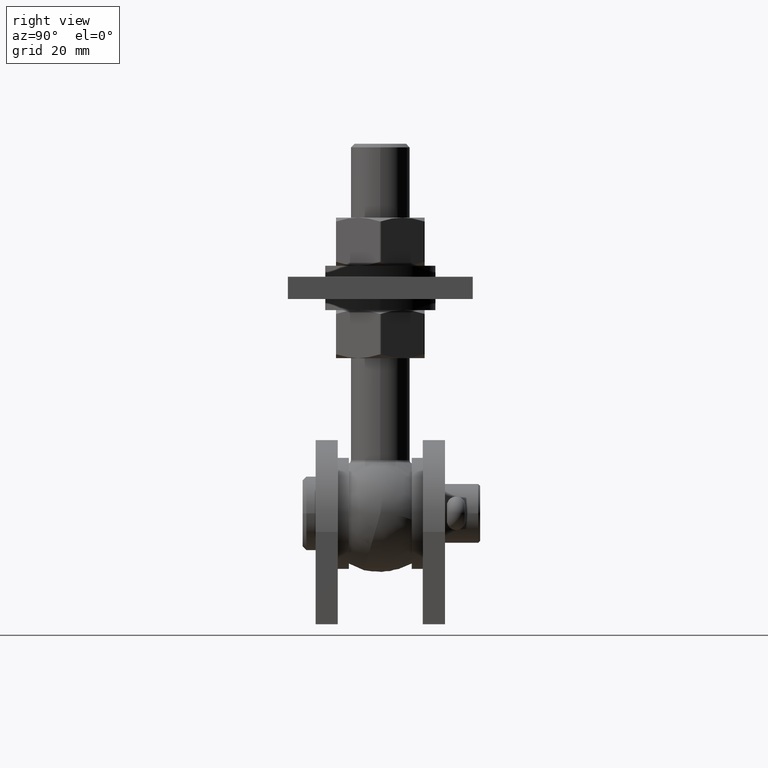
[diagram: clean part render]
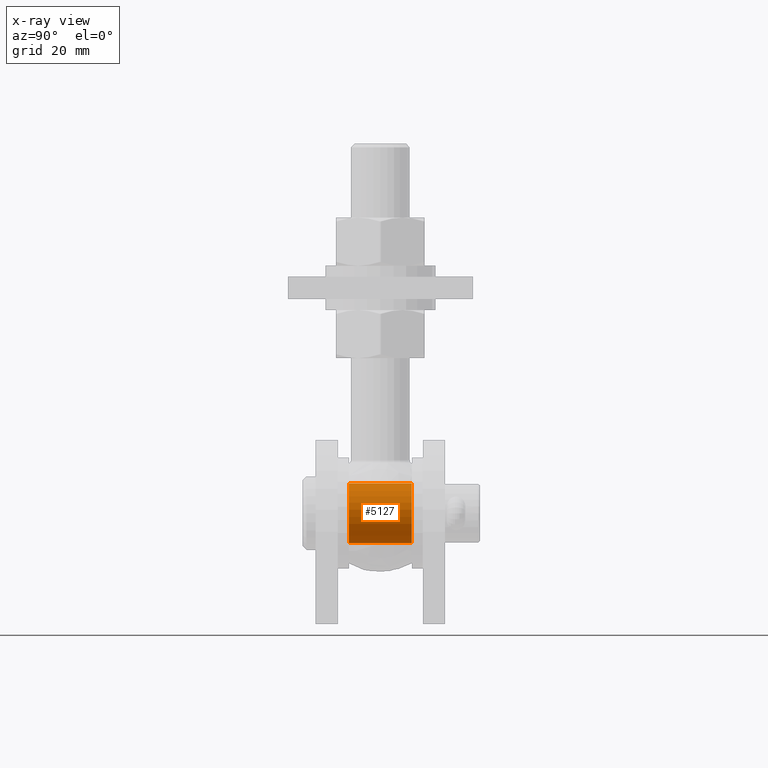
[diagram: x-ray — body ghosted, one internal face saturated and labeled with its STEP entity id]
A machine part, right view, then the same camera in x-ray: the body is ghosted and one INTERNAL B-rep face — a face not visible from any outside direction — is saturated and labeled: STEP entity #5127.
In plain terms, the highlighted cylindrical surface (bore or boss wall) has radius 8.1 mm, axis along (0, -1, -0).
Its self-contained STEP definition (entity closure, byte-faithful):
#3 = CIRCLE ( 'NONE', #6933, 8.100000000000001421 ) ;
#186 = FACE_OUTER_BOUND ( 'NONE', #19564, .T. ) ;
#2853 = CARTESIAN_POINT ( 'NONE',  ( 7.164459393120517373E-29, -8.500000000000000000, -8.100000000000001421 ) ) ;
#3010 = EDGE_CURVE ( 'NONE', #5394, #5394, #3, .T. ) ;
#5127 = ADVANCED_FACE ( 'NONE', ( #13097, #186 ), #22905, .F. ) ;
#5394 = VERTEX_POINT ( 'NONE', #13682 ) ;
#6933 = AXIS2_PLACEMENT_3D ( 'NONE', #7615, #7718, #22810 ) ;
#7615 = CARTESIAN_POINT ( 'NONE',  ( -6.933347799794049071E-29, 8.500000000000003553, 3.122849337825753772E-15 ) ) ;
#7718 = DIRECTION ( 'NONE',  ( 8.283039504820623957E-30, -1.000000000000000000, -1.836970198721031167E-16 ) ) ;
#8087 = ORIENTED_EDGE ( 'NONE', *, *, #16540, .T. ) ;
#13097 = FACE_OUTER_BOUND ( 'NONE', #26389, .T. ) ;
#13682 = CARTESIAN_POINT ( 'NONE',  ( -6.933347799794049071E-29, 8.500000000000005329, -8.099999999999997868 ) ) ;
#14260 = VERTEX_POINT ( 'NONE', #2853 ) ;
#14981 = DIRECTION ( 'NONE',  ( 8.283039504820623957E-30, -1.000000000000000000, -1.836970198721031167E-16 ) ) ;
#15999 = DIRECTION ( 'NONE',  ( 0.000000000000000000, 2.141633920959020754E-16, -1.000000000000000000 ) ) ;
#16540 = EDGE_CURVE ( 'NONE', #14260, #14260, #18498, .T. ) ;
#16897 = DIRECTION ( 'NONE',  ( 0.000000000000000000, 2.141633920959020754E-16, -1.000000000000000000 ) ) ;
#17897 = DIRECTION ( 'NONE',  ( 8.283039504820623957E-30, -1.000000000000000000, -1.836970198721031167E-16 ) ) ;
#18498 = CIRCLE ( 'NONE', #24679, 8.100000000000001421 ) ;
#19148 = ORIENTED_EDGE ( 'NONE', *, *, #3010, .F. ) ;
#19564 = EDGE_LOOP ( 'NONE', ( #19148 ) ) ;
#21540 = CARTESIAN_POINT ( 'NONE',  ( 7.164459393120517373E-29, -8.500000000000001776, -1.572639849350295960E-30 ) ) ;
#22113 = AXIS2_PLACEMENT_3D ( 'NONE', #22621, #17897, #15999 ) ;
#22621 = CARTESIAN_POINT ( 'NONE',  ( 7.164459393120517373E-29, -8.500000000000000000, -1.223565046930109287E-30 ) ) ;
#22810 = DIRECTION ( 'NONE',  ( 0.000000000000000000, 2.141633920959020754E-16, -1.000000000000000000 ) ) ;
#22905 = CYLINDRICAL_SURFACE ( 'NONE', #22113, 8.100000000000001421 ) ;
#24679 = AXIS2_PLACEMENT_3D ( 'NONE', #21540, #14981, #16897 ) ;
#26389 = EDGE_LOOP ( 'NONE', ( #8087 ) ) ;